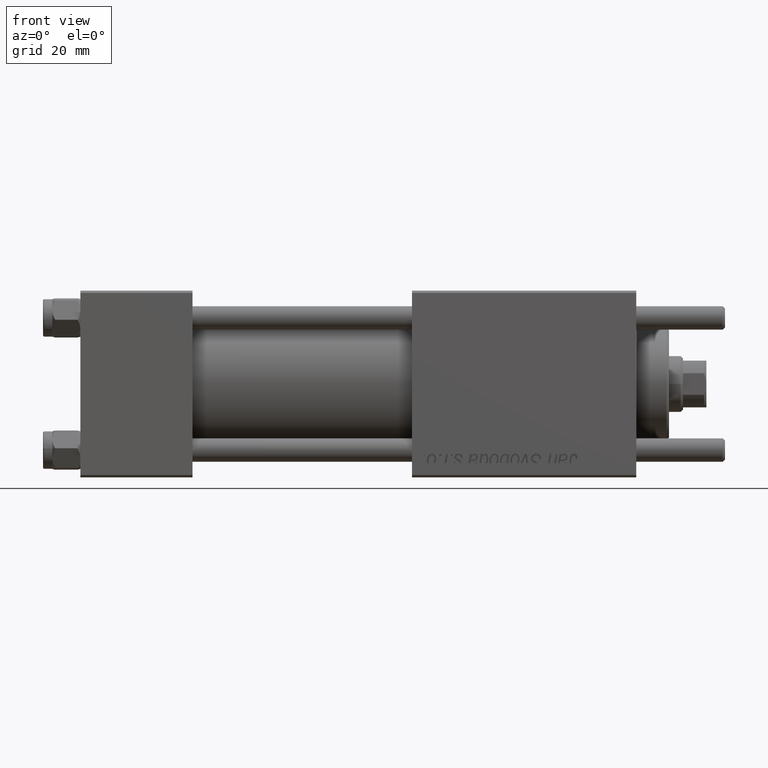
[diagram: clean part render]
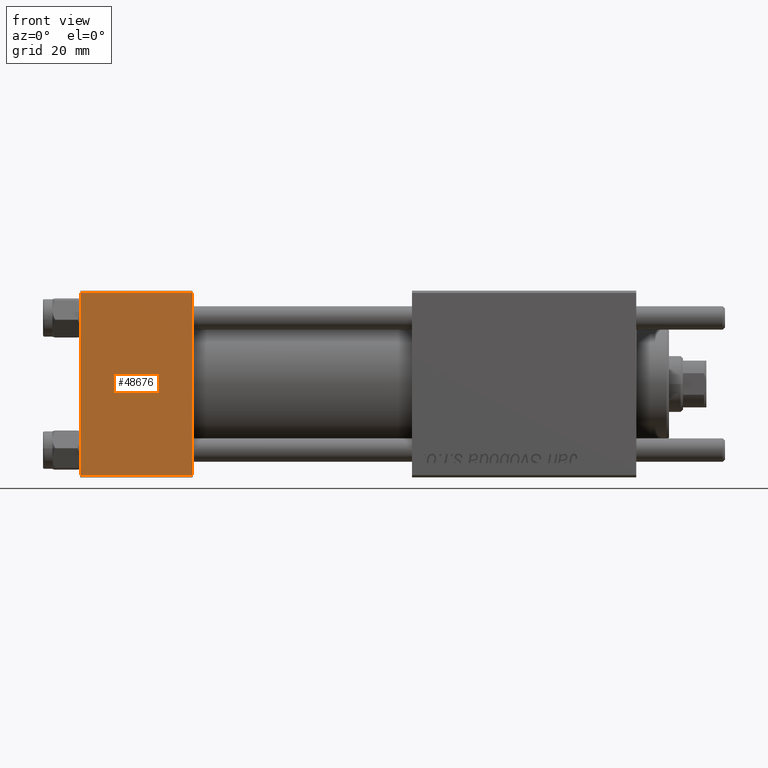
[diagram: same view with one face highlighted and labeled with its STEP entity id]
A machine part, front view. The second image highlights one B-rep face of the part: STEP entity #48676.
In plain terms, the highlighted planar face has unit normal (0, 1, 0).
Its self-contained STEP definition (entity closure, byte-faithful):
#264 = CARTESIAN_POINT ( 'NONE',  ( 24.00000000000000000, -20.00000000000000355, 19.49999999999998224 ) ) ;
#944 = CARTESIAN_POINT ( 'NONE',  ( 24.00000000000000000, -20.00000000000000355, 19.99999999999998934 ) ) ;
#948 = LINE ( 'NONE', #45795, #32986 ) ;
#2854 = FACE_OUTER_BOUND ( 'NONE', #30533, .T. ) ;
#4663 = LINE ( 'NONE', #944, #31486 ) ;
#7158 = PLANE ( 'NONE',  #42103 ) ;
#11375 = VERTEX_POINT ( 'NONE', #38864 ) ;
#12370 = CARTESIAN_POINT ( 'NONE',  ( 0.000000000000000000, -20.00000000000000000, -19.49999999999999645 ) ) ;
#12829 = VERTEX_POINT ( 'NONE', #47357 ) ;
#13146 = CARTESIAN_POINT ( 'NONE',  ( 24.00000000000000000, -20.00000000000000000, -19.49999999999999645 ) ) ;
#15991 = EDGE_CURVE ( 'NONE', #45745, #12829, #52200, .T. ) ;
#22039 = DIRECTION ( 'NONE',  ( 1.000000000000000000, 0.000000000000000000, 0.000000000000000000 ) ) ;
#22547 = DIRECTION ( 'NONE',  ( -1.000000000000000000, 0.000000000000000000, 0.000000000000000000 ) ) ;
#23204 = LINE ( 'NONE', #13146, #26834 ) ;
#23926 = DIRECTION ( 'NONE',  ( 0.000000000000000000, 8.673617379884036705E-17, -1.000000000000000000 ) ) ;
#26295 = CARTESIAN_POINT ( 'NONE',  ( 24.00000000000000000, -20.00000000000000355, 19.49999999999998224 ) ) ;
#26834 = VECTOR ( 'NONE', #22039, 1000.000000000000000 ) ;
#27682 = DIRECTION ( 'NONE',  ( 0.000000000000000000, 8.673617379884036705E-17, -1.000000000000000000 ) ) ;
#29024 = DIRECTION ( 'NONE',  ( 0.000000000000000000, -8.673617379884036705E-17, 1.000000000000000000 ) ) ;
#30533 = EDGE_LOOP ( 'NONE', ( #50427, #45640, #38877, #31842 ) ) ;
#31486 = VECTOR ( 'NONE', #27682, 1000.000000000000000 ) ;
#31842 = ORIENTED_EDGE ( 'NONE', *, *, #15991, .T. ) ;
#32986 = VECTOR ( 'NONE', #23926, 1000.000000000000000 ) ;
#33723 = VERTEX_POINT ( 'NONE', #12370 ) ;
#34088 = EDGE_CURVE ( 'NONE', #33723, #11375, #23204, .T. ) ;
#35578 = EDGE_CURVE ( 'NONE', #45745, #11375, #4663, .T. ) ;
#38238 = CARTESIAN_POINT ( 'NONE',  ( 24.00000000000000000, -20.00000000000000355, 19.99999999999998934 ) ) ;
#38864 = CARTESIAN_POINT ( 'NONE',  ( 24.00000000000000000, -20.00000000000000000, -19.49999999999999645 ) ) ;
#38877 = ORIENTED_EDGE ( 'NONE', *, *, #35578, .F. ) ;
#42103 = AXIS2_PLACEMENT_3D ( 'NONE', #38238, #43121, #29024 ) ;
#43121 = DIRECTION ( 'NONE',  ( -0.000000000000000000, 1.000000000000000000, 8.673617379884036705E-17 ) ) ;
#45640 = ORIENTED_EDGE ( 'NONE', *, *, #34088, .T. ) ;
#45745 = VERTEX_POINT ( 'NONE', #264 ) ;
#45795 = CARTESIAN_POINT ( 'NONE',  ( 0.000000000000000000, -20.00000000000000355, 19.99999999999998934 ) ) ;
#47357 = CARTESIAN_POINT ( 'NONE',  ( 0.000000000000000000, -20.00000000000000355, 19.49999999999998224 ) ) ;
#48676 = ADVANCED_FACE ( 'NONE', ( #2854 ), #7158, .F. ) ;
#50427 = ORIENTED_EDGE ( 'NONE', *, *, #50561, .T. ) ;
#50561 = EDGE_CURVE ( 'NONE', #12829, #33723, #948, .T. ) ;
#51243 = VECTOR ( 'NONE', #22547, 1000.000000000000000 ) ;
#52200 = LINE ( 'NONE', #26295, #51243 ) ;